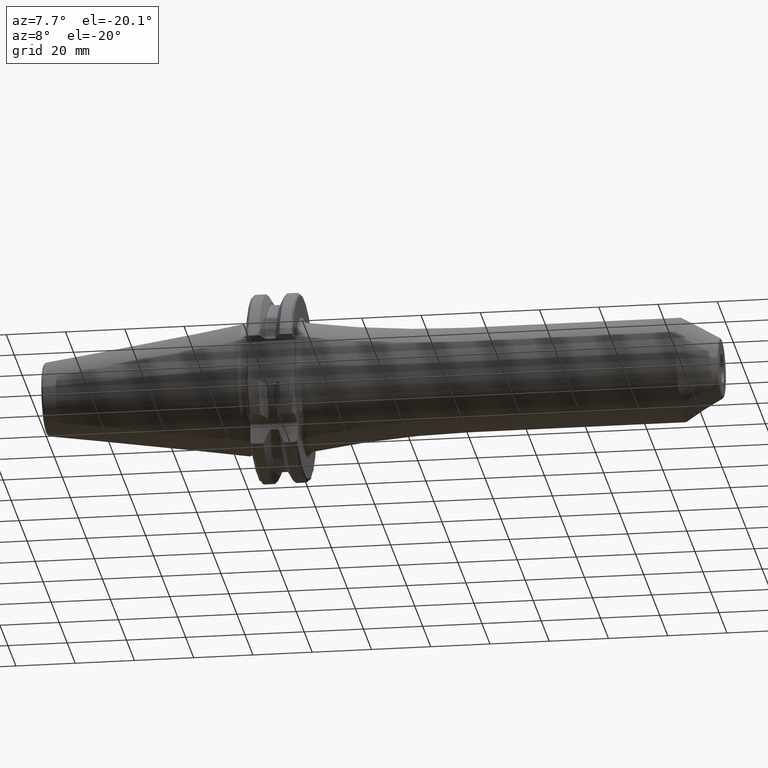
[diagram: clean part render]
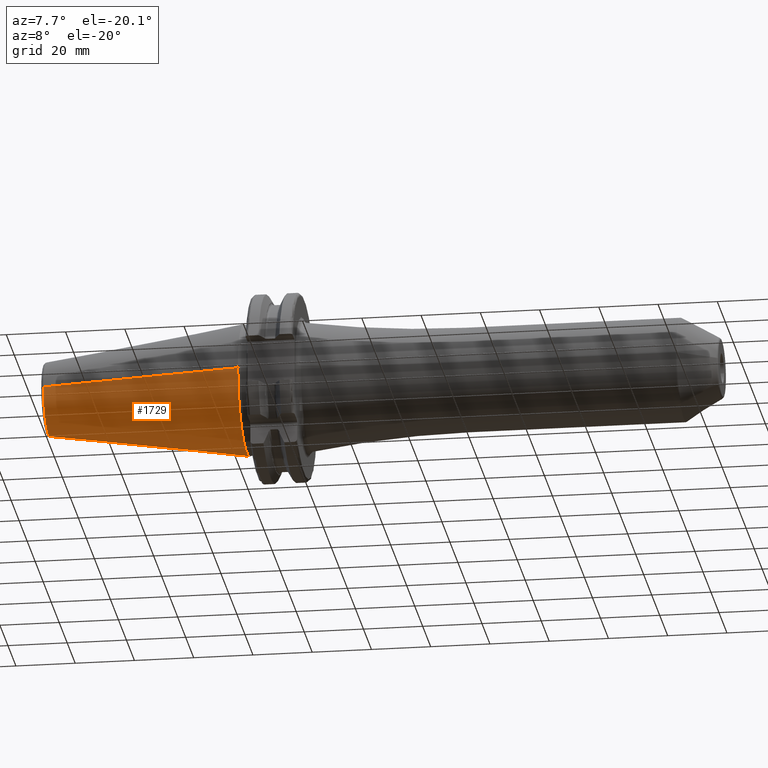
[diagram: same view with one face highlighted and labeled with its STEP entity id]
A machine part, auxiliary view. The second image highlights one B-rep face of the part: STEP entity #1729.
In plain terms, the highlighted conical surface has half-angle 8.298 deg.
Its self-contained STEP definition (entity closure, byte-faithful):
#32=CARTESIAN_POINT('',(-6.743710273571E1,0.E0,0.E0));
#33=DIRECTION('',(-1.E0,0.E0,0.E0));
#34=DIRECTION('',(0.E0,1.E0,0.E0));
#35=AXIS2_PLACEMENT_3D('',#32,#33,#34);
#47=DIRECTION('',(-9.895312636440E-1,-1.443186691705E-1,0.E0));
#48=VECTOR('',#47,6.765568998391E1);
#49=CARTESIAN_POINT('',(-4.896823332305E-1,2.215358204157E1,0.E0));
#50=LINE('',#49,#48);
#51=DIRECTION('',(-9.895312636440E-1,1.443186691705E-1,0.E0));
#52=VECTOR('',#51,6.765568998391E1);
#53=CARTESIAN_POINT('',(-4.896823332305E-1,-2.215358204157E1,0.E0));
#54=LINE('',#53,#52);
#55=CARTESIAN_POINT('',(-4.896823332305E-1,0.E0,0.E0));
#56=DIRECTION('',(-1.E0,0.E0,0.E0));
#57=DIRECTION('',(0.E0,1.E0,0.E0));
#58=AXIS2_PLACEMENT_3D('',#55,#56,#57);
#1386=CARTESIAN_POINT('',(-6.743710273571E1,1.238960290128E1,0.E0));
#1388=VERTEX_POINT('',#1386);
#1390=CARTESIAN_POINT('',(-6.743710273571E1,-1.238960290128E1,0.E0));
#1392=VERTEX_POINT('',#1390);
#1454=CARTESIAN_POINT('',(-4.896823332305E-1,2.215358204157E1,0.E0));
#1455=VERTEX_POINT('',#1454);
#1456=CARTESIAN_POINT('',(-4.896823332305E-1,-2.215358204157E1,0.E0));
#1457=VERTEX_POINT('',#1456);
#1717=CARTESIAN_POINT('',(-3.396339253447E1,0.E0,0.E0));
#1718=DIRECTION('',(1.E0,0.E0,0.E0));
#1719=DIRECTION('',(0.E0,-1.E0,0.E0));
#1720=AXIS2_PLACEMENT_3D('',#1717,#1718,#1719);
#1721=CONICAL_SURFACE('',#1720,1.727159247143E1,8.297826828206E0);
#1722=ORIENTED_EDGE('',*,*,#1707,.T.);
#1723=ORIENTED_EDGE('',*,*,#1684,.T.);
#1724=ORIENTED_EDGE('',*,*,#1711,.F.);
#1726=ORIENTED_EDGE('',*,*,#1725,.F.);
#1727=EDGE_LOOP('',(#1722,#1723,#1724,#1726));
#1728=FACE_OUTER_BOUND('',#1727,.F.);
#1729=ADVANCED_FACE('',(#1728),#1721,.T.);
#36=CIRCLE('',#35,1.238960290128E1);
#59=CIRCLE('',#58,2.215358204157E1);
#1684=EDGE_CURVE('',#1388,#1392,#36,.T.);
#1707=EDGE_CURVE('',#1455,#1388,#50,.T.);
#1711=EDGE_CURVE('',#1457,#1392,#54,.T.);
#1725=EDGE_CURVE('',#1455,#1457,#59,.T.);